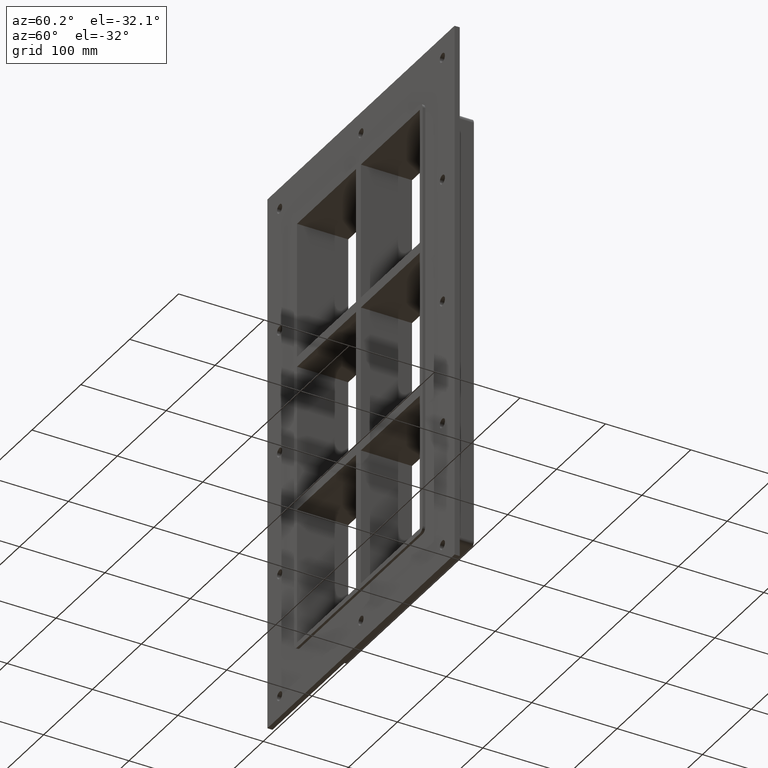
[diagram: clean part render]
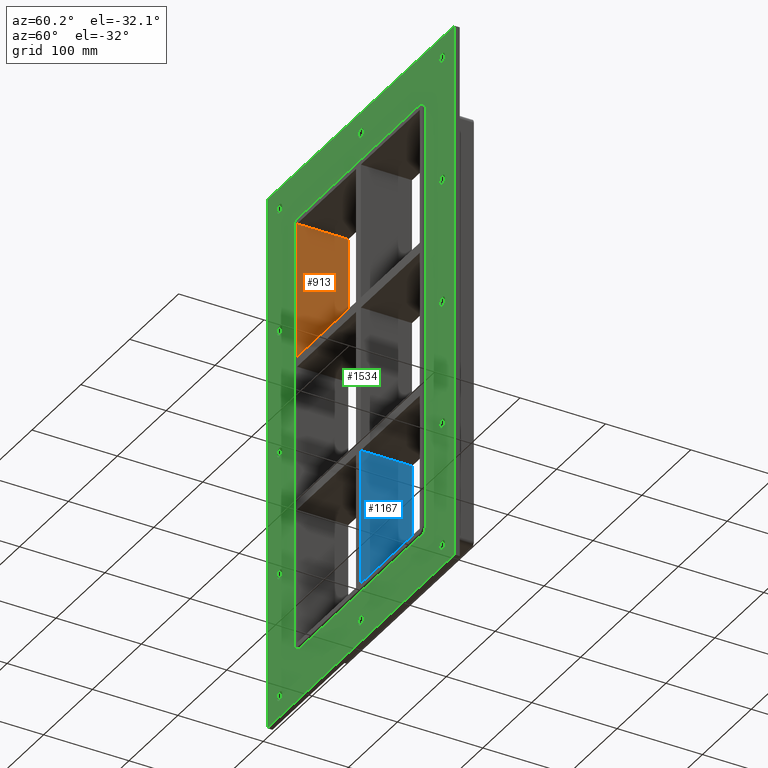
[diagram: same view with three faces highlighted in distinct colors, each labeled with its STEP entity id]
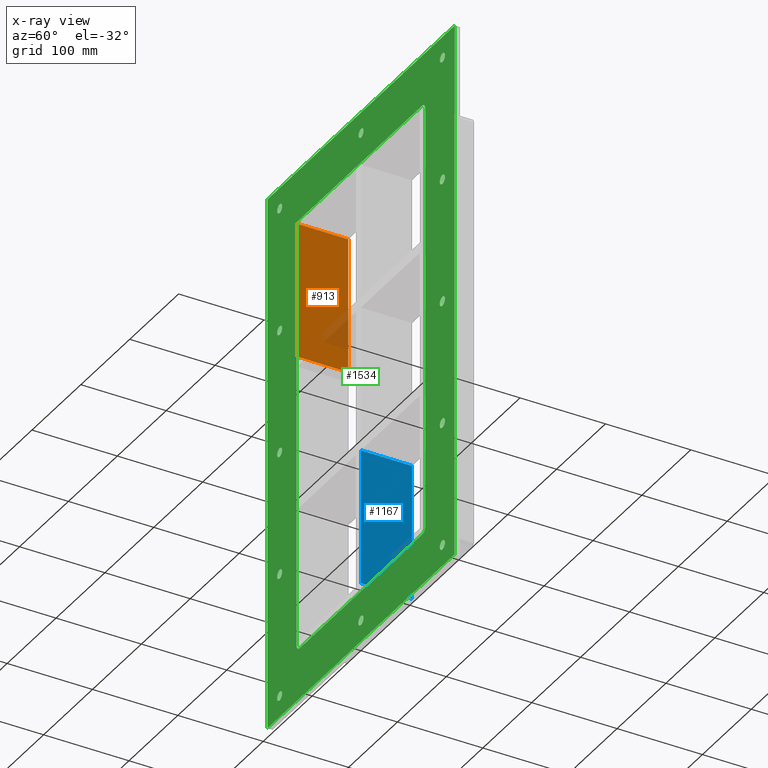
[diagram: x-ray of the same camera — body ghosted, the three highlighted faces saturated]
A machine part, auxiliary view with three faces highlighted in distinct colors.
The next image is the same camera in x-ray (body ghosted, the three faces saturated) — at least one of them is partly hidden behind the body in this view.
Their STEP definitions:

[orange] entity #913 — the highlighted planar face has unit normal (-1, 0, 0).
#499=CARTESIAN_POINT('',(-125.50000000000041,57.0,91.750000000000085));
#500=VERTEX_POINT('',#499);
#507=CARTESIAN_POINT('',(-125.50000000000041,-3.0,91.750000000000085));
#508=VERTEX_POINT('',#507);
#509=CARTESIAN_POINT('',(-125.49999999999997,-3.0,91.750000000000085));
#510=DIRECTION('',(0.0,1.0,0.0));
#511=VECTOR('',#510,60.000000000000007);
#512=LINE('',#509,#511);
#513=EDGE_CURVE('',#508,#500,#512,.T.);
#883=CARTESIAN_POINT('',(-125.49999999999997,0.0,-251.25000000000003));
#884=DIRECTION('',(-1.0,0.0,0.0));
#885=DIRECTION('',(0.0,0.0,1.0));
#886=AXIS2_PLACEMENT_3D('',#883,#884,#885);
#887=PLANE('',#886);
#888=ORIENTED_EDGE('',*,*,#513,.T.);
#889=CARTESIAN_POINT('',(-125.49999999999997,57.0,251.25000000000003));
#890=VERTEX_POINT('',#889);
#891=CARTESIAN_POINT('',(-125.49999999999997,57.0,251.25000000000006));
#892=DIRECTION('',(0.0,0.0,-1.0));
#893=VECTOR('',#892,159.49999999999994);
#894=LINE('',#891,#893);
#895=EDGE_CURVE('',#890,#500,#894,.T.);
#896=ORIENTED_EDGE('',*,*,#895,.F.);
#897=CARTESIAN_POINT('',(-125.49999999999997,-3.0,251.25000000000003));
#898=VERTEX_POINT('',#897);
#899=CARTESIAN_POINT('',(-125.49999999999997,-3.0,251.25000000000003));
#900=DIRECTION('',(0.0,1.0,0.0));
#901=VECTOR('',#900,60.0);
#902=LINE('',#899,#901);
#903=EDGE_CURVE('',#898,#890,#902,.T.);
#904=ORIENTED_EDGE('',*,*,#903,.F.);
#905=CARTESIAN_POINT('',(-125.49999999999997,-3.0,91.750000000000099));
#906=DIRECTION('',(0.0,0.0,1.0));
#907=VECTOR('',#906,159.49999999999994);
#908=LINE('',#905,#907);
#909=EDGE_CURVE('',#508,#898,#908,.T.);
#910=ORIENTED_EDGE('',*,*,#909,.F.);
#911=EDGE_LOOP('',(#888,#896,#904,#910));
#912=FACE_OUTER_BOUND('',#911,.T.);
#913=ADVANCED_FACE('',(#912),#887,.F.);

[blue] entity #1167 — the highlighted planar face has unit normal (1, 0, 0).
#755=CARTESIAN_POINT('',(5.0,57.0,-91.750000000010274));
#756=VERTEX_POINT('',#755);
#757=CARTESIAN_POINT('',(5.0,-3.0,-91.750000000010274));
#758=VERTEX_POINT('',#757);
#759=CARTESIAN_POINT('',(5.0,57.0,-91.75000000001026));
#760=DIRECTION('',(0.0,-1.0,0.0));
#761=VECTOR('',#760,60.0);
#762=LINE('',#759,#761);
#763=EDGE_CURVE('',#756,#758,#762,.T.);
#1085=CARTESIAN_POINT('',(5.0,57.0,-251.24999999998647));
#1086=VERTEX_POINT('',#1085);
#1087=CARTESIAN_POINT('',(5.0,57.0,-91.750000000010317));
#1088=DIRECTION('',(0.0,0.0,-1.0));
#1089=VECTOR('',#1088,159.49999999997613);
#1090=LINE('',#1087,#1089);
#1091=EDGE_CURVE('',#756,#1086,#1090,.T.);
#1144=CARTESIAN_POINT('',(5.0,-3.0,251.25000000000003));
#1145=DIRECTION('',(1.0,0.0,0.0));
#1146=DIRECTION('',(0.0,0.0,-1.0));
#1147=AXIS2_PLACEMENT_3D('',#1144,#1145,#1146);
#1148=PLANE('',#1147);
#1149=ORIENTED_EDGE('',*,*,#763,.T.);
#1150=CARTESIAN_POINT('',(5.0,-3.0,-251.2499999999865));
#1151=VERTEX_POINT('',#1150);
#1152=CARTESIAN_POINT('',(5.0,-3.0,-91.750000000010317));
#1153=DIRECTION('',(0.0,0.0,-1.0));
#1154=VECTOR('',#1153,159.49999999997613);
#1155=LINE('',#1152,#1154);
#1156=EDGE_CURVE('',#758,#1151,#1155,.T.);
#1157=ORIENTED_EDGE('',*,*,#1156,.T.);
#1158=CARTESIAN_POINT('',(5.0,57.000000000000007,-251.25000000000003));
#1159=DIRECTION('',(0.0,-1.0,0.0));
#1160=VECTOR('',#1159,60.000000000000007);
#1161=LINE('',#1158,#1160);
#1162=EDGE_CURVE('',#1086,#1151,#1161,.T.);
#1163=ORIENTED_EDGE('',*,*,#1162,.F.);
#1164=ORIENTED_EDGE('',*,*,#1091,.F.);
#1165=EDGE_LOOP('',(#1149,#1157,#1163,#1164));
#1166=FACE_OUTER_BOUND('',#1165,.T.);
#1167=ADVANCED_FACE('',(#1166),#1148,.T.);

[green] entity #1534 — the highlighted planar face has unit normal (0, 1, 0).
#84=CARTESIAN_POINT('',(-161.25000000000017,0.0,-292.25));
#85=VERTEX_POINT('',#84);
#86=CARTESIAN_POINT('',(-166.50000000000017,0.0,-292.25));
#87=DIRECTION('',(0.0,1.0,0.0));
#88=DIRECTION('',(1.0,0.0,0.0));
#89=AXIS2_PLACEMENT_3D('',#86,#87,#88);
#90=CIRCLE('',#89,5.25);
#91=EDGE_CURVE('',#85,#85,#90,.T.);
#112=CARTESIAN_POINT('',(171.74999999999986,0.0,-146.05000000000007));
#113=VERTEX_POINT('',#112);
#114=CARTESIAN_POINT('',(166.49999999999989,0.0,-146.05000000000007));
#115=DIRECTION('',(0.0,1.0,0.0));
#116=DIRECTION('',(1.0,0.0,0.0));
#117=AXIS2_PLACEMENT_3D('',#114,#115,#116);
#118=CIRCLE('',#117,5.25);
#119=EDGE_CURVE('',#113,#113,#118,.T.);
#140=CARTESIAN_POINT('',(-161.25000000000017,0.0,-146.05000000000007));
#141=VERTEX_POINT('',#140);
#142=CARTESIAN_POINT('',(-166.50000000000017,0.0,-146.05000000000007));
#143=DIRECTION('',(0.0,1.0,0.0));
#144=DIRECTION('',(1.0,0.0,0.0));
#145=AXIS2_PLACEMENT_3D('',#142,#143,#144);
#146=CIRCLE('',#145,5.25);
#147=EDGE_CURVE('',#141,#141,#146,.T.);
#168=CARTESIAN_POINT('',(171.74999999999986,0.0,0.14999999999997));
#169=VERTEX_POINT('',#168);
#170=CARTESIAN_POINT('',(166.49999999999989,0.0,0.14999999999997));
#171=DIRECTION('',(0.0,1.0,0.0));
#172=DIRECTION('',(1.0,0.0,0.0));
#173=AXIS2_PLACEMENT_3D('',#170,#171,#172);
#174=CIRCLE('',#173,5.25);
#175=EDGE_CURVE('',#169,#169,#174,.T.);
#196=CARTESIAN_POINT('',(-161.25000000000017,0.0,0.14999999999997));
#197=VERTEX_POINT('',#196);
#198=CARTESIAN_POINT('',(-166.50000000000017,0.0,0.14999999999997));
#199=DIRECTION('',(0.0,1.0,0.0));
#200=DIRECTION('',(1.0,0.0,0.0));
#201=AXIS2_PLACEMENT_3D('',#198,#199,#200);
#202=CIRCLE('',#201,5.25);
#203=EDGE_CURVE('',#197,#197,#202,.T.);
#224=CARTESIAN_POINT('',(171.74999999999986,0.0,146.34999999999997));
#225=VERTEX_POINT('',#224);
#226=CARTESIAN_POINT('',(166.49999999999989,0.0,146.34999999999997));
#227=DIRECTION('',(0.0,1.0,0.0));
#228=DIRECTION('',(1.0,0.0,0.0));
#229=AXIS2_PLACEMENT_3D('',#226,#227,#228);
#230=CIRCLE('',#229,5.25);
#231=EDGE_CURVE('',#225,#225,#230,.T.);
#252=CARTESIAN_POINT('',(-161.25000000000017,0.0,146.34999999999997));
#253=VERTEX_POINT('',#252);
#254=CARTESIAN_POINT('',(-166.50000000000017,0.0,146.34999999999997));
#255=DIRECTION('',(0.0,1.0,0.0));
#256=DIRECTION('',(1.0,0.0,0.0));
#257=AXIS2_PLACEMENT_3D('',#254,#255,#256);
#258=CIRCLE('',#257,5.25);
#259=EDGE_CURVE('',#253,#253,#258,.T.);
#280=CARTESIAN_POINT('',(5.249999999999844,0.0,292.54999999999995));
#281=VERTEX_POINT('',#280);
#282=CARTESIAN_POINT('',(-1.421085E-013,0.0,292.54999999999995));
#283=DIRECTION('',(0.0,1.0,0.0));
#284=DIRECTION('',(1.0,0.0,0.0));
#285=AXIS2_PLACEMENT_3D('',#282,#283,#284);
#286=CIRCLE('',#285,5.25);
#287=EDGE_CURVE('',#281,#281,#286,.T.);
#308=CARTESIAN_POINT('',(5.249999999999844,0.0,-292.25));
#309=VERTEX_POINT('',#308);
#310=CARTESIAN_POINT('',(-1.421085E-013,0.0,-292.25));
#311=DIRECTION('',(0.0,1.0,0.0));
#312=DIRECTION('',(1.0,0.0,0.0));
#313=AXIS2_PLACEMENT_3D('',#310,#311,#312);
#314=CIRCLE('',#313,5.25);
#315=EDGE_CURVE('',#309,#309,#314,.T.);
#336=CARTESIAN_POINT('',(171.74999999999986,0.0,-292.25));
#337=VERTEX_POINT('',#336);
#338=CARTESIAN_POINT('',(166.49999999999989,0.0,-292.25));
#339=DIRECTION('',(0.0,1.0,0.0));
#340=DIRECTION('',(1.0,0.0,0.0));
#341=AXIS2_PLACEMENT_3D('',#338,#339,#340);
#342=CIRCLE('',#341,5.25);
#343=EDGE_CURVE('',#337,#337,#342,.T.);
#364=CARTESIAN_POINT('',(-161.25000000000017,0.0,292.54999999999995));
#365=VERTEX_POINT('',#364);
#366=CARTESIAN_POINT('',(-166.50000000000017,0.0,292.54999999999995));
#367=DIRECTION('',(0.0,1.0,0.0));
#368=DIRECTION('',(1.0,0.0,0.0));
#369=AXIS2_PLACEMENT_3D('',#366,#367,#368);
#370=CIRCLE('',#369,5.25);
#371=EDGE_CURVE('',#365,#365,#370,.T.);
#392=CARTESIAN_POINT('',(171.74999999999986,0.0,292.54999999999995));
#393=VERTEX_POINT('',#392);
#394=CARTESIAN_POINT('',(166.49999999999989,0.0,292.54999999999995));
#395=DIRECTION('',(0.0,1.0,0.0));
#396=DIRECTION('',(1.0,0.0,0.0));
#397=AXIS2_PLACEMENT_3D('',#394,#395,#396);
#398=CIRCLE('',#397,5.25);
#399=EDGE_CURVE('',#393,#393,#398,.T.);
#1389=CARTESIAN_POINT('',(-1.675973E-014,0.0,0.0));
#1390=DIRECTION('',(0.0,1.0,0.0));
#1391=DIRECTION('',(0.0,0.0,1.0));
#1392=AXIS2_PLACEMENT_3D('',#1389,#1390,#1391);
#1393=PLANE('',#1392);
#1394=CARTESIAN_POINT('',(-191.50000000000003,0.0,317.25));
#1395=VERTEX_POINT('',#1394);
#1396=CARTESIAN_POINT('',(191.5,0.0,317.25));
#1397=VERTEX_POINT('',#1396);
#1398=CARTESIAN_POINT('',(-191.50000000000003,0.0,317.25));
#1399=DIRECTION('',(1.0,0.0,0.0));
#1400=VECTOR('',#1399,383.0);
#1401=LINE('',#1398,#1400);
#1402=EDGE_CURVE('',#1395,#1397,#1401,.T.);
#1403=ORIENTED_EDGE('',*,*,#1402,.F.);
#1404=CARTESIAN_POINT('',(-191.50000000000003,0.0,-317.25));
#1405=VERTEX_POINT('',#1404);
#1406=CARTESIAN_POINT('',(-191.50000000000003,0.0,-317.25));
#1407=DIRECTION('',(0.0,0.0,1.0));
#1408=VECTOR('',#1407,634.5);
#1409=LINE('',#1406,#1408);
#1410=EDGE_CURVE('',#1405,#1395,#1409,.T.);
#1411=ORIENTED_EDGE('',*,*,#1410,.F.);
#1412=CARTESIAN_POINT('',(191.5,0.0,-317.25));
#1413=VERTEX_POINT('',#1412);
#1414=CARTESIAN_POINT('',(191.5,0.0,-317.25));
#1415=DIRECTION('',(-1.0,0.0,0.0));
#1416=VECTOR('',#1415,383.0);
#1417=LINE('',#1414,#1416);
#1418=EDGE_CURVE('',#1413,#1405,#1417,.T.);
#1419=ORIENTED_EDGE('',*,*,#1418,.F.);
#1420=CARTESIAN_POINT('',(191.5,0.0,317.25));
#1421=DIRECTION('',(0.0,0.0,-1.0));
#1422=VECTOR('',#1421,634.5);
#1423=LINE('',#1420,#1422);
#1424=EDGE_CURVE('',#1397,#1413,#1423,.T.);
#1425=ORIENTED_EDGE('',*,*,#1424,.F.);
#1426=EDGE_LOOP('',(#1403,#1411,#1419,#1425));
#1427=FACE_OUTER_BOUND('',#1426,.T.);
#1428=ORIENTED_EDGE('',*,*,#91,.T.);
#1429=EDGE_LOOP('',(#1428));
#1430=FACE_BOUND('',#1429,.T.);
#1431=ORIENTED_EDGE('',*,*,#119,.T.);
#1432=EDGE_LOOP('',(#1431));
#1433=FACE_BOUND('',#1432,.T.);
#1434=ORIENTED_EDGE('',*,*,#147,.T.);
#1435=EDGE_LOOP('',(#1434));
#1436=FACE_BOUND('',#1435,.T.);
#1437=ORIENTED_EDGE('',*,*,#175,.T.);
#1438=EDGE_LOOP('',(#1437));
#1439=FACE_BOUND('',#1438,.T.);
#1440=ORIENTED_EDGE('',*,*,#203,.T.);
#1441=EDGE_LOOP('',(#1440));
#1442=FACE_BOUND('',#1441,.T.);
#1443=ORIENTED_EDGE('',*,*,#231,.T.);
#1444=EDGE_LOOP('',(#1443));
#1445=FACE_BOUND('',#1444,.T.);
#1446=ORIENTED_EDGE('',*,*,#259,.T.);
#1447=EDGE_LOOP('',(#1446));
#1448=FACE_BOUND('',#1447,.T.);
#1449=ORIENTED_EDGE('',*,*,#287,.T.);
#1450=EDGE_LOOP('',(#1449));
#1451=FACE_BOUND('',#1450,.T.);
#1452=ORIENTED_EDGE('',*,*,#315,.T.);
#1453=EDGE_LOOP('',(#1452));
#1454=FACE_BOUND('',#1453,.T.);
#1455=ORIENTED_EDGE('',*,*,#343,.T.);
#1456=EDGE_LOOP('',(#1455));
#1457=FACE_BOUND('',#1456,.T.);
#1458=ORIENTED_EDGE('',*,*,#371,.T.);
#1459=EDGE_LOOP('',(#1458));
#1460=FACE_BOUND('',#1459,.T.);
#1461=ORIENTED_EDGE('',*,*,#399,.T.);
#1462=EDGE_LOOP('',(#1461));
#1463=FACE_BOUND('',#1462,.T.);
#1464=CARTESIAN_POINT('',(-131.5,0.0,-251.25));
#1465=VERTEX_POINT('',#1464);
#1466=CARTESIAN_POINT('',(-125.49999999999997,0.0,-257.25));
#1467=VERTEX_POINT('',#1466);
#1468=CARTESIAN_POINT('',(-125.49999999999997,0.0,-251.25));
#1469=DIRECTION('',(0.0,-1.0,0.0));
#1470=DIRECTION('',(-0.707106781186548,0.0,-0.707106781186548));
#1471=AXIS2_PLACEMENT_3D('',#1468,#1469,#1470);
#1472=CIRCLE('',#1471,6.000000000000002);
#1473=EDGE_CURVE('',#1465,#1467,#1472,.T.);
#1474=ORIENTED_EDGE('',*,*,#1473,.F.);
#1475=CARTESIAN_POINT('',(-131.5,0.0,251.25));
#1476=VERTEX_POINT('',#1475);
#1477=CARTESIAN_POINT('',(-131.5,0.0,251.25));
#1478=DIRECTION('',(0.0,0.0,-1.0));
#1479=VECTOR('',#1478,502.5);
#1480=LINE('',#1477,#1479);
#1481=EDGE_CURVE('',#1476,#1465,#1480,.T.);
#1482=ORIENTED_EDGE('',*,*,#1481,.F.);
#1483=CARTESIAN_POINT('',(-125.49999999999997,0.0,257.25));
#1484=VERTEX_POINT('',#1483);
#1485=CARTESIAN_POINT('',(-125.49999999999997,0.0,251.25));
#1486=DIRECTION('',(0.0,-1.0,0.0));
#1487=DIRECTION('',(-0.707106781186548,0.0,0.707106781186548));
#1488=AXIS2_PLACEMENT_3D('',#1485,#1486,#1487);
#1489=CIRCLE('',#1488,6.000000000000002);
#1490=EDGE_CURVE('',#1484,#1476,#1489,.T.);
#1491=ORIENTED_EDGE('',*,*,#1490,.F.);
#1492=CARTESIAN_POINT('',(125.49999999999997,0.0,257.25));
#1493=VERTEX_POINT('',#1492);
#1494=CARTESIAN_POINT('',(125.49999999999997,0.0,257.25));
#1495=DIRECTION('',(-1.0,0.0,0.0));
#1496=VECTOR('',#1495,250.99999999999994);
#1497=LINE('',#1494,#1496);
#1498=EDGE_CURVE('',#1493,#1484,#1497,.T.);
#1499=ORIENTED_EDGE('',*,*,#1498,.F.);
#1500=CARTESIAN_POINT('',(131.5,0.0,251.25));
#1501=VERTEX_POINT('',#1500);
#1502=CARTESIAN_POINT('',(125.49999999999997,0.0,251.25));
#1503=DIRECTION('',(0.0,-1.0,0.0));
#1504=DIRECTION('',(0.707106781186548,0.0,0.707106781186548));
#1505=AXIS2_PLACEMENT_3D('',#1502,#1503,#1504);
#1506=CIRCLE('',#1505,6.000000000000002);
#1507=EDGE_CURVE('',#1501,#1493,#1506,.T.);
#1508=ORIENTED_EDGE('',*,*,#1507,.F.);
#1509=CARTESIAN_POINT('',(131.5,0.0,-251.25));
#1510=VERTEX_POINT('',#1509);
#1511=CARTESIAN_POINT('',(131.5,0.0,-251.25));
#1512=DIRECTION('',(0.0,0.0,1.0));
#1513=VECTOR('',#1512,502.5);
#1514=LINE('',#1511,#1513);
#1515=EDGE_CURVE('',#1510,#1501,#1514,.T.);
#1516=ORIENTED_EDGE('',*,*,#1515,.F.);
#1517=CARTESIAN_POINT('',(125.49999999999997,0.0,-257.25));
#1518=VERTEX_POINT('',#1517);
#1519=CARTESIAN_POINT('',(125.49999999999997,0.0,-251.25));
#1520=DIRECTION('',(0.0,-1.0,0.0));
#1521=DIRECTION('',(0.707106781186548,0.0,-0.707106781186548));
#1522=AXIS2_PLACEMENT_3D('',#1519,#1520,#1521);
#1523=CIRCLE('',#1522,6.000000000000002);
#1524=EDGE_CURVE('',#1518,#1510,#1523,.T.);
#1525=ORIENTED_EDGE('',*,*,#1524,.F.);
#1526=CARTESIAN_POINT('',(-125.49999999999999,0.0,-257.25));
#1527=DIRECTION('',(1.0,0.0,0.0));
#1528=VECTOR('',#1527,250.99999999999994);
#1529=LINE('',#1526,#1528);
#1530=EDGE_CURVE('',#1467,#1518,#1529,.T.);
#1531=ORIENTED_EDGE('',*,*,#1530,.F.);
#1532=EDGE_LOOP('',(#1474,#1482,#1491,#1499,#1508,#1516,#1525,#1531));
#1533=FACE_BOUND('',#1532,.T.);
#1534=ADVANCED_FACE('',(#1427,#1430,#1433,#1436,#1439,#1442,#1445,#1448,#1451,#1454,#1457,#1460,#1463,#1533),#1393,.F.);